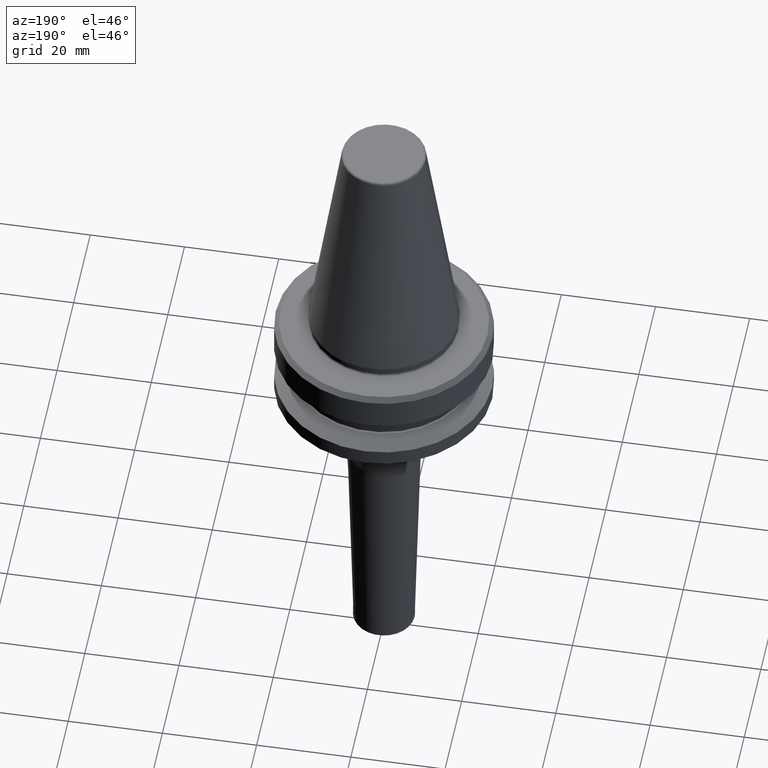
[diagram: clean part render]
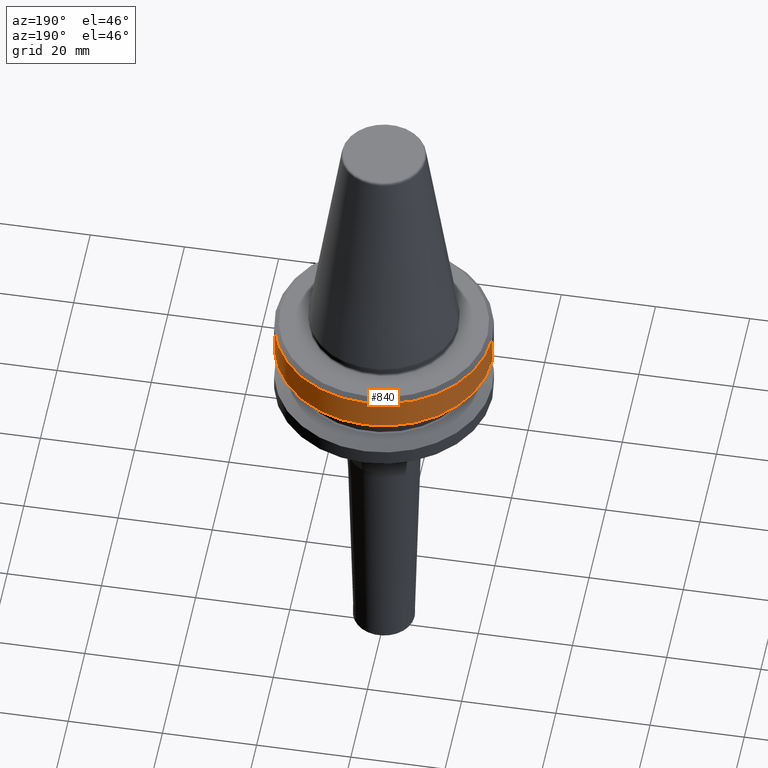
[diagram: same view with one face highlighted and labeled with its STEP entity id]
A machine part, auxiliary view. The second image highlights one B-rep face of the part: STEP entity #840.
In plain terms, the highlighted cylindrical surface (partial cylindrical patch) has radius 23 mm, axis along (-0, -0, 1).
Its self-contained STEP definition (entity closure, byte-faithful):
#73 = EDGE_CURVE ( 'NONE', #389, #440, #607, .T. ) ;
#85 = CIRCLE ( 'NONE', #728, 23.00000000000002100 ) ;
#151 = DIRECTION ( 'NONE',  ( 1.000000000000000000, 0.0000000000000000000, 0.0000000000000000000 ) ) ;
#185 = EDGE_LOOP ( 'NONE', ( #393, #818, #439, #282 ) ) ;
#191 = EDGE_CURVE ( 'NONE', #807, #705, #85, .T. ) ;
#211 = CYLINDRICAL_SURFACE ( 'NONE', #863, 23.00000000000002100 ) ;
#282 = ORIENTED_EDGE ( 'NONE', *, *, #503, .F. ) ;
#301 = AXIS2_PLACEMENT_3D ( 'NONE', #1051, #529, #1034 ) ;
#336 = FACE_OUTER_BOUND ( 'NONE', #185, .T. ) ;
#389 = VERTEX_POINT ( 'NONE', #881 ) ;
#393 = ORIENTED_EDGE ( 'NONE', *, *, #191, .T. ) ;
#439 = ORIENTED_EDGE ( 'NONE', *, *, #73, .F. ) ;
#440 = VERTEX_POINT ( 'NONE', #713 ) ;
#500 = DIRECTION ( 'NONE',  ( -0.0000000000000000000, -0.0000000000000000000, 1.000000000000000000 ) ) ;
#503 = EDGE_CURVE ( 'NONE', #807, #389, #932, .T. ) ;
#508 = VECTOR ( 'NONE', #906, 1000.000000000000000 ) ;
#529 = DIRECTION ( 'NONE',  ( -0.0000000000000000000, -0.0000000000000000000, 1.000000000000000000 ) ) ;
#530 = EDGE_CURVE ( 'NONE', #705, #440, #1010, .T. ) ;
#607 = CIRCLE ( 'NONE', #301, 23.00000000000002100 ) ;
#616 = CARTESIAN_POINT ( 'NONE',  ( 23.00000000000002100, 0.0000000000000000000, -9.600117335054836300 ) ) ;
#619 = DIRECTION ( 'NONE',  ( -0.0000000000000000000, -0.0000000000000000000, 1.000000000000000000 ) ) ;
#671 = CARTESIAN_POINT ( 'NONE',  ( 23.00000000000002100, 0.0000000000000000000, 105.6755792788445500 ) ) ;
#705 = VERTEX_POINT ( 'NONE', #1018 ) ;
#713 = CARTESIAN_POINT ( 'NONE',  ( -23.00000000000002100, 2.816687638038915100E-015, -3.000000000000113700 ) ) ;
#724 = CARTESIAN_POINT ( 'NONE',  ( 0.0000000000000000000, 0.0000000000000000000, -9.600117335054836300 ) ) ;
#728 = AXIS2_PLACEMENT_3D ( 'NONE', #724, #500, #962 ) ;
#807 = VERTEX_POINT ( 'NONE', #616 ) ;
#816 = DIRECTION ( 'NONE',  ( -0.0000000000000000000, -0.0000000000000000000, 1.000000000000000000 ) ) ;
#818 = ORIENTED_EDGE ( 'NONE', *, *, #530, .T. ) ;
#840 = ADVANCED_FACE ( 'NONE', ( #336 ), #211, .T. ) ;
#847 = CARTESIAN_POINT ( 'NONE',  ( 0.0000000000000000000, 0.0000000000000000000, 105.6755792788445500 ) ) ;
#863 = AXIS2_PLACEMENT_3D ( 'NONE', #847, #619, #151 ) ;
#881 = CARTESIAN_POINT ( 'NONE',  ( 23.00000000000002100, 0.0000000000000000000, -3.000000000000113700 ) ) ;
#902 = CARTESIAN_POINT ( 'NONE',  ( -23.00000000000002100, 2.816687638038915100E-015, 105.6755792788445500 ) ) ;
#906 = DIRECTION ( 'NONE',  ( -0.0000000000000000000, -0.0000000000000000000, 1.000000000000000000 ) ) ;
#932 = LINE ( 'NONE', #671, #1037 ) ;
#962 = DIRECTION ( 'NONE',  ( 1.000000000000000000, 0.0000000000000000000, 0.0000000000000000000 ) ) ;
#1010 = LINE ( 'NONE', #902, #508 ) ;
#1018 = CARTESIAN_POINT ( 'NONE',  ( -23.00000000000002100, 2.816687638038914700E-015, -9.600117335054836300 ) ) ;
#1034 = DIRECTION ( 'NONE',  ( 1.000000000000000000, 0.0000000000000000000, 0.0000000000000000000 ) ) ;
#1037 = VECTOR ( 'NONE', #816, 1000.000000000000000 ) ;
#1051 = CARTESIAN_POINT ( 'NONE',  ( 0.0000000000000000000, 0.0000000000000000000, -3.000000000000113700 ) ) ;